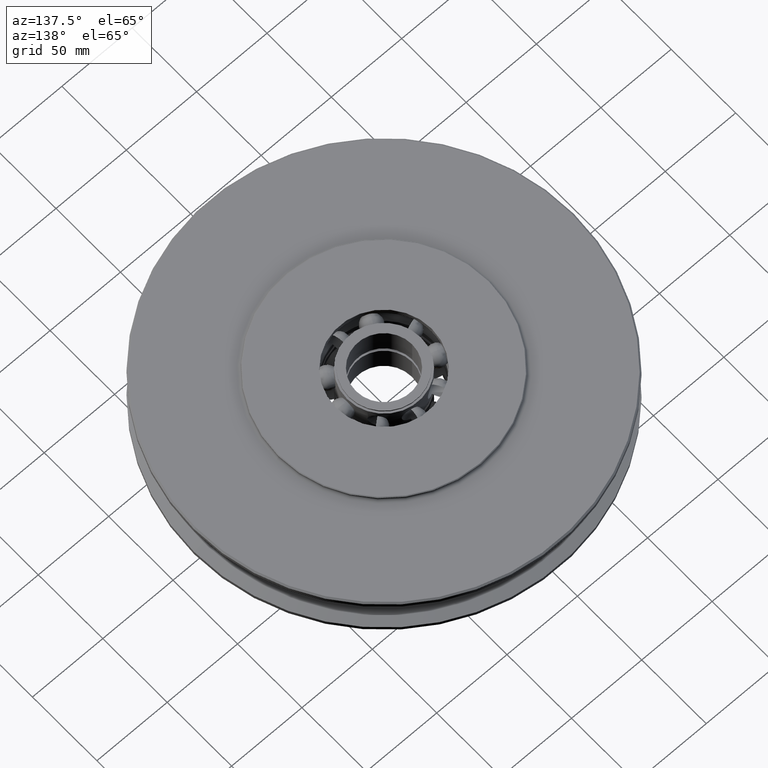
[diagram: clean part render]
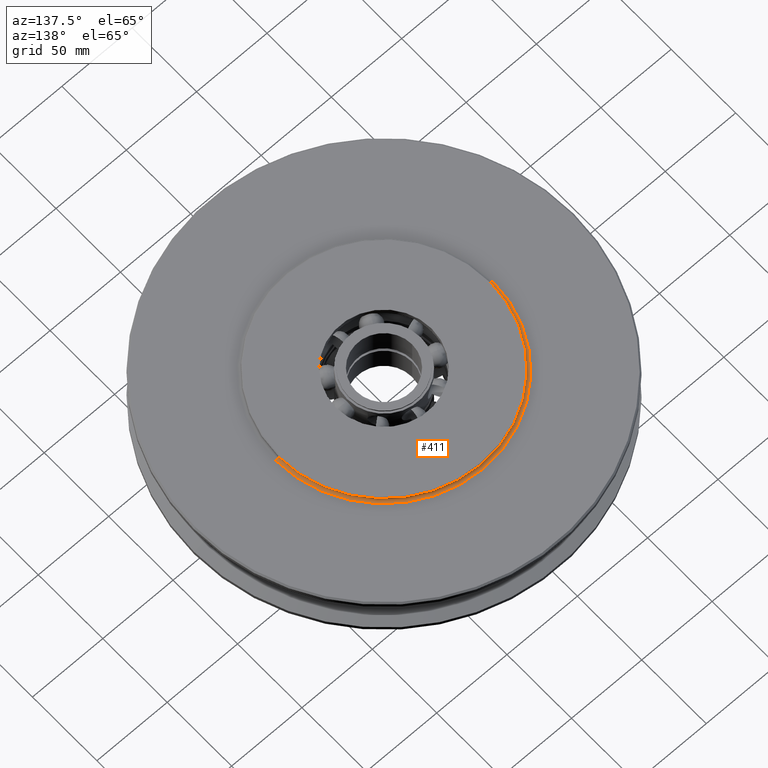
[diagram: same view with one face highlighted and labeled with its STEP entity id]
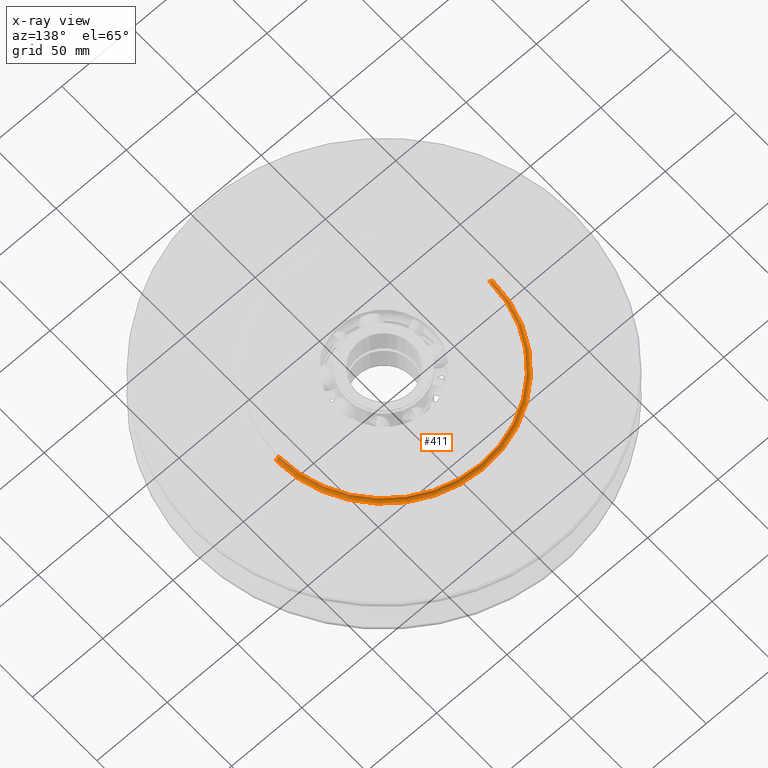
[diagram: x-ray of the same camera — body ghosted, the highlighted face saturated]
A machine part, auxiliary view. The second image highlights one B-rep face of the part: STEP entity #411.
The next image is the same camera in x-ray: the body ghosted, the highlighted face saturated — about 0% of this face is hidden behind the body in this view.
In plain terms, the highlighted toroidal blend (fillet) surface has major radius 77 mm and minor (blend) radius 2 mm.
Its self-contained STEP definition (entity closure, byte-faithful):
#411=ADVANCED_FACE('',(#854),#855,.F.);
#854=FACE_OUTER_BOUND('',#1304,.T.);
#855=TOROIDAL_SURFACE('',#1305,77.0,2.00000000000003);
#1304=EDGE_LOOP('',(#2703,#2704,#2705,#2706));
#1305=AXIS2_PLACEMENT_3D('',#2707,#2708,#2709);
#2703=ORIENTED_EDGE('',*,*,#2966,.T.);
#2704=ORIENTED_EDGE('',*,*,#2963,.F.);
#2705=ORIENTED_EDGE('',*,*,#2968,.T.);
#2706=ORIENTED_EDGE('',*,*,#3386,.T.);
#2707=CARTESIAN_POINT('',(0.0,0.0,18.5));
#2708=DIRECTION('',(0.0,0.0,1.0));
#2709=DIRECTION('',(1.0,0.0,0.0));
#2963=EDGE_CURVE('',#3659,#3661,#3662,.T.);
#2966=EDGE_CURVE('',#3665,#3661,#3666,.T.);
#2968=EDGE_CURVE('',#3659,#3667,#3669,.T.);
#3386=EDGE_CURVE('',#3667,#3665,#4291,.T.);
#3659=VERTEX_POINT('',#6090);
#3661=VERTEX_POINT('',#6093);
#3662=CIRCLE('',#6094,75.0);
#3665=VERTEX_POINT('',#6098);
#3666=CIRCLE('',#6099,2.00000000000003);
#3667=VERTEX_POINT('',#6100);
#3669=CIRCLE('',#6102,2.00000000000003);
#4291=CIRCLE('',#10406,77.0);
#6090=CARTESIAN_POINT('',(75.0,0.0,18.5));
#6093=CARTESIAN_POINT('',(-75.0,9.18485099360515E-015,18.5));
#6094=AXIS2_PLACEMENT_3D('',#10640,#10641,#10642);
#6098=CARTESIAN_POINT('',(-77.0,9.42978035343462E-015,16.5));
#6099=AXIS2_PLACEMENT_3D('',#10644,#10645,#10646);
#6100=CARTESIAN_POINT('',(77.0,0.0,16.5));
#6102=AXIS2_PLACEMENT_3D('',#10650,#10651,#10652);
#10406=AXIS2_PLACEMENT_3D('',#11089,#11090,#11091);
#10640=CARTESIAN_POINT('',(0.0,0.0,18.5));
#10641=DIRECTION('',(0.0,0.0,1.0));
#10642=DIRECTION('',(1.0,0.0,0.0));
#10644=CARTESIAN_POINT('',(-77.0,9.42978035343462E-015,18.5));
#10645=DIRECTION('',(-1.22464679914735E-016,-1.0,0.0));
#10646=DIRECTION('',(-1.0,1.22464679914735E-016,-0.0));
#10650=CARTESIAN_POINT('',(77.0,-9.42978035343462E-015,18.5));
#10651=DIRECTION('',(-1.22464679914735E-016,-1.0,0.0));
#10652=DIRECTION('',(1.0,-1.22464679914735E-016,0.0));
#11089=CARTESIAN_POINT('',(0.0,0.0,16.5));
#11090=DIRECTION('',(0.0,0.0,1.0));
#11091=DIRECTION('',(1.0,0.0,0.0));